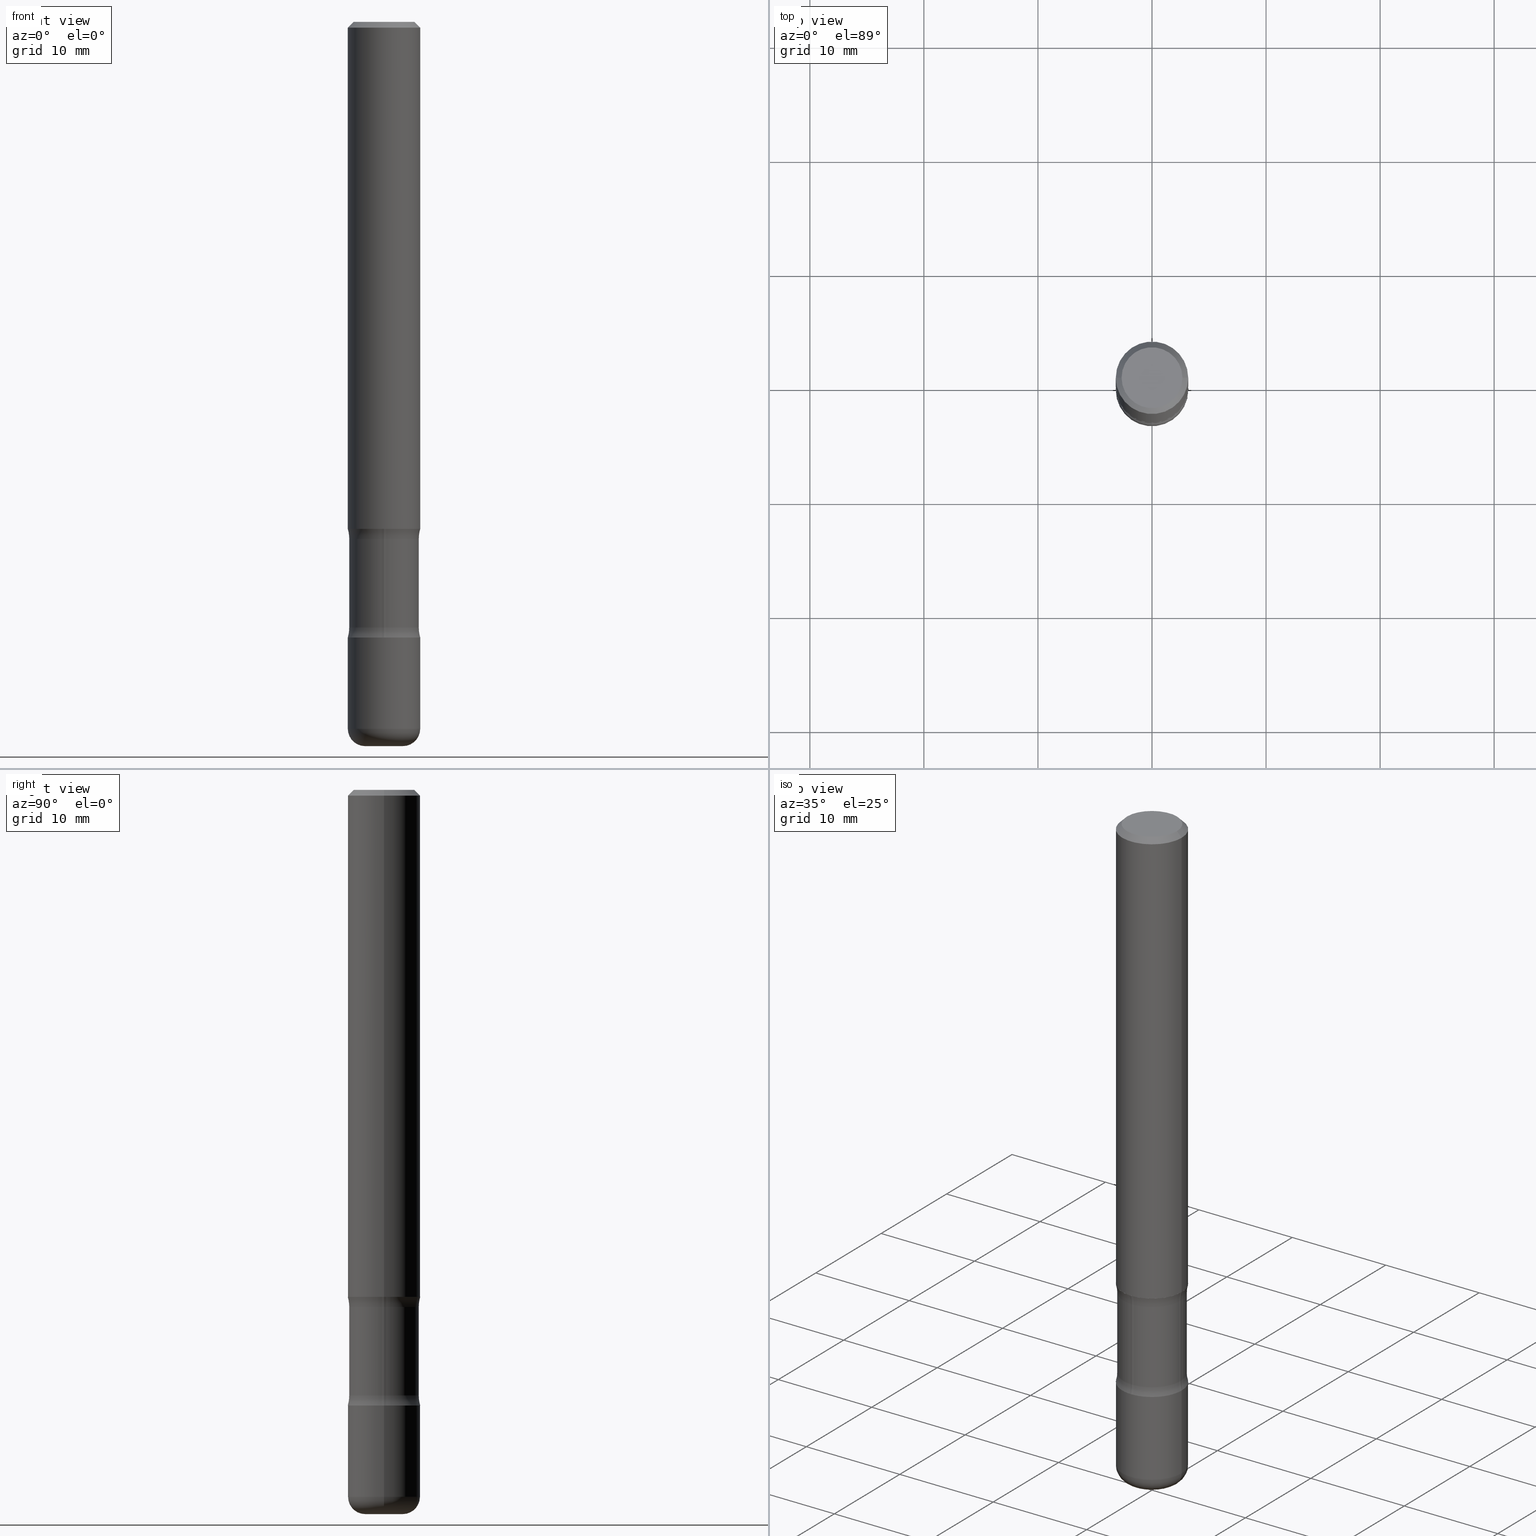
[diagram: canonical four-view strip — front | top / right | iso, engineering-drawing reading convention]
A machine part, canonical four-view strip (front | top / right | iso — engineering-drawing reading convention). The complete STEP part file that produces these views, byte-faithful:
ISO-10303-21;
HEADER;
FILE_DESCRIPTION (( 'STEP AP203' ),
    '1' );
FILE_NAME ('35788.STEP',
    '2023-03-11T07:10:27',
    ( '' ),
    ( '' ),
    'SwSTEP 2.0',
    'SolidWorks 2022',
    '' );
FILE_SCHEMA (( 'CONFIG_CONTROL_DESIGN' ));
ENDSEC;

DATA;
#1 = LENGTH_MEASURE_WITH_UNIT ( LENGTH_MEASURE( 0.02539999999999999897 ), #186 );
#2 = CONICAL_SURFACE ( 'NONE', #465, 0.1249999999999997780, 0.7853981633974477239 ) ;
#3 = DIRECTION ( 'NONE',  ( -2.445468806185136877E-29, 3.491481338843145188E-15, 1.000000000000000000 ) ) ;
#4 = AXIS2_PLACEMENT_3D ( 'NONE', #162, #111, #786 ) ;
#5 = ORIENTED_EDGE ( 'NONE', *, *, #499, .T. ) ;
#6 = EDGE_CURVE ( 'NONE', #706, #231, #749, .T. ) ;
#7 = DIRECTION ( 'NONE',  ( -0.7071067811865471286, 2.468850131082252722E-15, -0.7071067811865479058 ) ) ;
#8 = ORIENTED_EDGE ( 'NONE', *, *, #389, .F. ) ;
#9 = PERSON_AND_ORGANIZATION ( #29, #80 ) ;
#10 = DIRECTION ( 'NONE',  ( 1.000000000000000000, -6.982962677686262766E-15, 0.000000000000000000 ) ) ;
#11 = ORIENTED_EDGE ( 'NONE', *, *, #742, .F. ) ;
#12 = EDGE_CURVE ( 'NONE', #547, #70, #141, .T. ) ;
#13 = CARTESIAN_POINT ( 'NONE',  ( 5.111029804926934859E-29, -7.297195998182173641E-15, -2.089999999999999858 ) ) ;
#14 = VERTEX_POINT ( 'NONE', #411 ) ;
#15 = TOROIDAL_SURFACE ( 'NONE', #221, 0.2449999999999998568, 0.1250000000000000278 ) ;
#16 = VECTOR ( 'NONE', #281, 39.37007874015748143 ) ;
#17 = EDGE_CURVE ( 'NONE', #399, #403, #490, .T. ) ;
#18 = APPROVAL_STATUS ( 'not_yet_approved' ) ;
#19 = DIRECTION ( 'NONE',  ( 1.000000000000000000, -6.982962677686266711E-15, 4.883557194083112901E-29 ) ) ;
#20 = ORIENTED_EDGE ( 'NONE', *, *, #404, .F. ) ;
#21 = FACE_OUTER_BOUND ( 'NONE', #483, .T. ) ;
#22 = FACE_OUTER_BOUND ( 'NONE', #703, .T. ) ;
#23 = ORIENTED_EDGE ( 'NONE', *, *, #74, .T. ) ;
#24 = ADVANCED_FACE ( 'NONE', ( #519 ), #660, .F. ) ;
#25 = CARTESIAN_POINT ( 'NONE',  ( 5.196621213143415268E-29, -7.419397845041685201E-15, -2.125000000000000000 ) ) ;
#26 = DIRECTION ( 'NONE',  ( 0.7071067811865471286, -7.319954787623254468E-15, -0.7071067811865479058 ) ) ;
#27 = AXIS2_PLACEMENT_3D ( 'NONE', #116, #599, #605 ) ;
#28 = AXIS2_PLACEMENT_3D ( 'NONE', #580, #30, #770 ) ;
#29 = PERSON ( 'UNSPECIFIED', 'UNSPECIFIED', 'UNSPECIFIED', ('UNSPECIFIED'), ('UNSPECIFIED'), ('UNSPECIFIED') ) ;
#30 = DIRECTION ( 'NONE',  ( -2.445468806185136597E-29, 3.491481338843145583E-15, 1.000000000000000000 ) ) ;
#31 = DIRECTION ( 'NONE',  ( 2.451633719983710684E-29, -3.482652831398484905E-15, -1.000000000000000000 ) ) ;
#32 = DIRECTION ( 'NONE',  ( -2.445468806185136597E-29, 3.491481338843145583E-15, 1.000000000000000000 ) ) ;
#33 = DIRECTION ( 'NONE',  ( 2.438088387897960049E-29, -3.491481338843145188E-15, -1.000000000000000000 ) ) ;
#34 = EDGE_LOOP ( 'NONE', ( #294, #681 ) ) ;
#35 = LINE ( 'NONE', #801, #16 ) ;
#36 = DIRECTION ( 'NONE',  ( 1.000000000000000000, -6.982962677686266711E-15, 4.876176775795935793E-29 ) ) ;
#37 = PERSON_AND_ORGANIZATION ( #29, #80 ) ;
#38 = EDGE_CURVE ( 'NONE', #73, #342, #118, .T. ) ;
#39 = CIRCLE ( 'NONE', #380, 0.1249999999999999861 ) ;
#40 = VECTOR ( 'NONE', #767, 39.37007874015748143 ) ;
#41 = CARTESIAN_POINT ( 'NONE',  ( 6.111489178996587108E-29, -8.719007768687004191E-15, -2.498166659601683826 ) ) ;
#42 = DIRECTION ( 'NONE',  ( -2.445468806185136597E-29, 3.491481338843145583E-15, 1.000000000000000000 ) ) ;
#43 = MANIFOLD_SOLID_BREP ( 'Body-Move/Copy2[2]', #672 ) ;
#44 = EDGE_LOOP ( 'NONE', ( #608, #603, #480, #314 ) ) ;
#45 = DATE_TIME_ROLE ( 'classification_date' ) ;
#46 = MANIFOLD_SOLID_BREP ( 'Body-Move/Copy2[1]', #567 ) ;
#47 = DIRECTION ( 'NONE',  ( 6.982962677686265922E-15, 1.000000000000000000, -4.370956789862821150E-15 ) ) ;
#48 = CARTESIAN_POINT ( 'NONE',  ( 6.111489178996587108E-29, -8.719007768687004191E-15, -2.498166659601683826 ) ) ;
#49 = ORIENTED_EDGE ( 'NONE', *, *, #440, .T. ) ;
#50 = DIRECTION ( 'NONE',  ( -2.451633719983710403E-29, 3.482652831398484905E-15, 1.000000000000000000 ) ) ;
#51 = APPROVAL ( #615, 'UNSPECIFIED' ) ;
#52 = DIRECTION ( 'NONE',  ( 1.000000000000000000, -6.982962677686261189E-15, 0.000000000000000000 ) ) ;
#53 = ORIENTED_EDGE ( 'NONE', *, *, #6, .F. ) ;
#54 = VECTOR ( 'NONE', #26, 39.37007874015748143 ) ;
#55 = DIRECTION ( 'NONE',  ( -6.982962677686265922E-15, -1.000000000000000000, 3.482652831398484905E-15 ) ) ;
#56 = AXIS2_PLACEMENT_3D ( 'NONE', #481, #50, #55 ) ;
#57 = TOROIDAL_SURFACE ( 'NONE', #700, 0.2449999999999998568, 0.1250000000000000000 ) ;
#58 = CARTESIAN_POINT ( 'NONE',  ( 0.2449999999999998568, -7.943120045868152049E-15, -1.785000000000000808 ) ) ;
#59 = EDGE_LOOP ( 'NONE', ( #386, #443, #536, #129 ) ) ;
#60 = CARTESIAN_POINT ( 'NONE',  ( 0.000000000000000000, 0.000000000000000000, 0.000000000000000000 ) ) ;
#61 = CARTESIAN_POINT ( 'NONE',  ( 4.277258568149523867E-29, -6.113403033267252573E-15, -1.750000000000000222 ) ) ;
#62 = EDGE_LOOP ( 'NONE', ( #87, #23, #345, #164 ) ) ;
#63 = ADVANCED_FACE ( 'NONE', ( #22 ), #2, .T. ) ;
#64 = VERTEX_POINT ( 'NONE', #574 ) ;
#65 = PERSON_AND_ORGANIZATION ( #29, #80 ) ;
#66 = CIRCLE ( 'NONE', #734, 0.1250000000000000000 ) ;
#67 = FACE_OUTER_BOUND ( 'NONE', #273, .T. ) ;
#68 = CIRCLE ( 'NONE', #689, 0.1249999999999999861 ) ;
#69 = CIRCLE ( 'NONE', #652, 0.1199999999999998429 ) ;
#70 = VERTEX_POINT ( 'NONE', #577 ) ;
#71 = PERSON_AND_ORGANIZATION ( #29, #80 ) ;
#72 = DIRECTION ( 'NONE',  ( 1.000000000000000000, -6.982962677686266711E-15, 4.883557194083112901E-29 ) ) ;
#73 = VERTEX_POINT ( 'NONE', #161 ) ;
#74 = EDGE_CURVE ( 'NONE', #139, #110, #522, .T. ) ;
#75 = CARTESIAN_POINT ( 'NONE',  ( 1.608875449502237401E-29, -9.934679534105473571E-15, -1.750000000000000222 ) ) ;
#76 = ADVANCED_FACE ( 'NONE', ( #457 ), #265, .T. ) ;
#77 = ORIENTED_EDGE ( 'NONE', *, *, #17, .T. ) ;
#78 = AXIS2_PLACEMENT_3D ( 'NONE', #210, #264, #205 ) ;
#79 = EDGE_LOOP ( 'NONE', ( #91, #472, #419, #358 ) ) ;
#80 = ORGANIZATION ( 'UNSPECIFIED', 'UNSPECIFIED', '' ) ;
#81 = CARTESIAN_POINT ( 'NONE',  ( 4.279570410823989044E-29, -6.110092342975505460E-15, -1.750000000000000222 ) ) ;
#82 = DIRECTION ( 'NONE',  ( -1.000000000000000000, 6.982962677686265922E-15, -4.876176775795935793E-29 ) ) ;
#83 = ADVANCED_FACE ( 'NONE', ( #762 ), #454, .T. ) ;
#84 = DATE_AND_TIME ( #575, #341 ) ;
#85 = CARTESIAN_POINT ( 'NONE',  ( -0.1249999999999999029, 8.881784197001245421E-16, -6.148668862818627323E-30 ) ) ;
#86 = DIRECTION ( 'NONE',  ( -2.445468806185136597E-29, 3.491481338843145583E-15, 1.000000000000000000 ) ) ;
#87 = ORIENTED_EDGE ( 'NONE', *, *, #260, .F. ) ;
#88 = CARTESIAN_POINT ( 'NONE',  ( 4.363065748348955413E-29, -6.235295882366202606E-15, -1.785000000000000808 ) ) ;
#89 = CARTESIAN_POINT ( 'NONE',  ( -0.1049999999999997741, 7.681258945454874055E-16, -1.707404996040689597E-17 ) ) ;
#90 = TOROIDAL_SURFACE ( 'NONE', #338, 0.2449999999999998568, 0.1250000000000000278 ) ;
#91 = ORIENTED_EDGE ( 'NONE', *, *, #269, .T. ) ;
#92 = CIRCLE ( 'NONE', #393, 0.1250000000000000000 ) ;
#93 = CIRCLE ( 'NONE', #737, 0.1250000000000000278 ) ;
#94 = DIRECTION ( 'NONE',  ( -2.445468806185136597E-29, 3.491481338843145583E-15, 1.000000000000000000 ) ) ;
#95 = CARTESIAN_POINT ( 'NONE',  ( 8.439607951891260774E-29, -2.775256255812431222E-15, -2.125000000000000000 ) ) ;
#96 = EDGE_LOOP ( 'NONE', ( #236, #486, #475, #671 ) ) ;
#97 = DIRECTION ( 'NONE',  ( 2.451633719983710684E-29, -3.482652831398484905E-15, -1.000000000000000000 ) ) ;
#98 = DIRECTION ( 'NONE',  ( -2.445468806185136597E-29, 3.491481338843145583E-15, 1.000000000000000000 ) ) ;
#99 = EDGE_CURVE ( 'NONE', #342, #73, #106, .T. ) ;
#100 = EDGE_LOOP ( 'NONE', ( #150, #185, #49, #427 ) ) ;
#101 = PRODUCT ( '35788', '35788', '', ( #493 ) ) ;
#102 = EDGE_CURVE ( 'NONE', #110, #64, #525, .T. ) ;
#103 = DIRECTION ( 'NONE',  ( -2.445468806185136597E-29, 3.491481338843145583E-15, 1.000000000000000000 ) ) ;
#104 = LINE ( 'NONE', #163, #352 ) ;
#105 = ORIENTED_EDGE ( 'NONE', *, *, #167, .F. ) ;
#106 = CIRCLE ( 'NONE', #479, 0.1199999999999998013 ) ;
#107 = CIRCLE ( 'NONE', #182, 0.1250000000000000000 ) ;
#108 = CARTESIAN_POINT ( 'NONE',  ( 8.728703347108260359E-16, 0.1249999999999938799, -1.750000000000000666 ) ) ;
#109 = DIRECTION ( 'NONE',  ( 1.000000000000000000, -6.982962677686263555E-15, 0.000000000000000000 ) ) ;
#110 = VERTEX_POINT ( 'NONE', #396 ) ;
#111 = DIRECTION ( 'NONE',  ( -2.445468806185136597E-29, 3.491481338843145583E-15, 1.000000000000000000 ) ) ;
#112 = DIRECTION ( 'NONE',  ( -2.438088387897960049E-29, 3.491481338843145188E-15, 1.000000000000000000 ) ) ;
#113 = ORIENTED_EDGE ( 'NONE', *, *, #756, .T. ) ;
#114 = EDGE_CURVE ( 'NONE', #287, #547, #763, .T. ) ;
#115 = CARTESIAN_POINT ( 'NONE',  ( 0.06500000000000000222, -8.973107040826881753E-15, -2.440000000000000391 ) ) ;
#116 = CARTESIAN_POINT ( 'NONE',  ( 4.175405657340879278E-46, -5.961372681521788801E-32, -1.707404996040164512E-17 ) ) ;
#117 = EDGE_LOOP ( 'NONE', ( #11, #719, #750 ) ) ;
#118 = CIRCLE ( 'NONE', #308, 0.1199999999999998013 ) ;
#119 = APPROVAL_STATUS ( 'not_yet_approved' ) ;
#120 = AXIS2_PLACEMENT_3D ( 'NONE', #510, #394, #212 ) ;
#121 = CARTESIAN_POINT ( 'NONE',  ( 6.113672015462843734E-29, -8.728703347107868098E-15, -2.500000000000001332 ) ) ;
#122 = ADVANCED_FACE ( 'NONE', ( #639 ), #204, .T. ) ;
#123 = VERTEX_POINT ( 'NONE', #642 ) ;
#124 = DIRECTION ( 'NONE',  ( -2.445468806185136597E-29, 3.491481338843145583E-15, 1.000000000000000000 ) ) ;
#125 = EDGE_CURVE ( 'NONE', #793, #730, #66, .T. ) ;
#126 = VERTEX_POINT ( 'NONE', #89 ) ;
#127 =( NAMED_UNIT ( * ) SI_UNIT ( $, .STERADIAN. ) SOLID_ANGLE_UNIT ( ) );
#128 = CARTESIAN_POINT ( 'NONE',  ( 5.966943887091733341E-29, -8.519214466777275048E-15, -2.440000000000000391 ) ) ;
#129 = ORIENTED_EDGE ( 'NONE', *, *, #214, .F. ) ;
#130 = EDGE_CURVE ( 'NONE', #722, #73, #153, .T. ) ;
#131 = APPROVAL_DATE_TIME ( #744, #300 ) ;
#132 = VECTOR ( 'NONE', #226, 39.37007874015748143 ) ;
#133 = DIRECTION ( 'NONE',  ( 1.000000000000000000, -6.860497997771530774E-15, 4.840906997657976435E-29 ) ) ;
#134 = TOROIDAL_SURFACE ( 'NONE', #662, 0.06500000000000000222, 0.05999999999999968553 ) ;
#135 = EDGE_LOOP ( 'NONE', ( #423, #154, #557, #728 ) ) ;
#136 = PRODUCT_RELATED_PRODUCT_CATEGORY ( 'detail', '', ( #101 ) ) ;
#137 = DIRECTION ( 'NONE',  ( 1.000000000000000000, -6.982962677686261189E-15, 0.000000000000000000 ) ) ;
#138 = DIRECTION ( 'NONE',  ( -1.000000000000000000, 6.982962677686266711E-15, 0.000000000000000000 ) ) ;
#139 = VERTEX_POINT ( 'NONE', #646 ) ;
#140 = PLANE ( 'NONE',  #207 ) ;
#141 = LINE ( 'NONE', #390, #206 ) ;
#142 = APPLICATION_CONTEXT ( 'configuration controlled 3d designs of mechanical parts and assemblies' ) ;
#143 = DIRECTION ( 'NONE',  ( -2.438088387897960049E-29, 3.491481338843145188E-15, 1.000000000000000000 ) ) ;
#144 = CIRCLE ( 'NONE', #591, 0.06500000000000001610 ) ;
#145 = AXIS2_PLACEMENT_3D ( 'NONE', #428, #598, #421 ) ;
#146 = DIRECTION ( 'NONE',  ( 1.000000000000000000, -6.982962677686263555E-15, 0.000000000000000000 ) ) ;
#147 = LOCAL_TIME ( 2, 10, 27.00000000000000000, #790 ) ;
#148 = LINE ( 'NONE', #85, #40 ) ;
#149 = DIRECTION ( 'NONE',  ( 1.000000000000000000, -6.982962677686263555E-15, 0.000000000000000000 ) ) ;
#150 = ORIENTED_EDGE ( 'NONE', *, *, #301, .F. ) ;
#151 = ADVANCED_FACE ( 'NONE', ( #340 ), #582, .F. ) ;
#152 = DIRECTION ( 'NONE',  ( 6.982962677686265922E-15, 1.000000000000000000, -3.482652831398484905E-15 ) ) ;
#153 = LINE ( 'NONE', #156, #256 ) ;
#154 = ORIENTED_EDGE ( 'NONE', *, *, #114, .F. ) ;
#155 = CYLINDRICAL_SURFACE ( 'NONE', #369, 0.1199999999999998151 ) ;
#156 = CARTESIAN_POINT ( 'NONE',  ( 0.1199999999999998151, -6.948047864297855572E-15, -1.750000000000000000 ) ) ;
#157 = VERTEX_POINT ( 'NONE', #467 ) ;
#158 = AXIS2_PLACEMENT_3D ( 'NONE', #550, #378, #257 ) ;
#159 = LOCAL_TIME ( 2, 10, 27.00000000000000000, #559 ) ;
#160 = CARTESIAN_POINT ( 'NONE',  ( 4.365161819040470574E-29, -6.232294189835017809E-15, -1.785000000000000808 ) ) ;
#161 = CARTESIAN_POINT ( 'NONE',  ( 0.1199999999999998013, -7.070249711157367921E-15, -1.785000000000000808 ) ) ;
#162 = CARTESIAN_POINT ( 'NONE',  ( 5.966943887091733341E-29, -8.519214466777275048E-15, -2.440000000000000391 ) ) ;
#163 = CARTESIAN_POINT ( 'NONE',  ( -0.1199999999999998151, -5.257441060063385268E-15, -1.750000000000000000 ) ) ;
#164 = ORIENTED_EDGE ( 'NONE', *, *, #388, .F. ) ;
#165 = FACE_OUTER_BOUND ( 'NONE', #62, .T. ) ;
#166 = DIRECTION ( 'NONE',  ( 1.000000000000000000, -6.982962677686269866E-15, 4.883557194083114022E-29 ) ) ;
#167 = EDGE_CURVE ( 'NONE', #14, #502, #268, .T. ) ;
#168 = ORIENTED_EDGE ( 'NONE', *, *, #752, .F. ) ;
#169 = AXIS2_PLACEMENT_3D ( 'NONE', #259, #201, #695 ) ;
#170 = AXIS2_PLACEMENT_3D ( 'NONE', #313, #133, #805 ) ;
#171 = CARTESIAN_POINT ( 'NONE',  ( 4.279570410823988484E-29, -6.110092342975504671E-15, -1.750000000000000000 ) ) ;
#172 = FACE_OUTER_BOUND ( 'NONE', #117, .T. ) ;
#173 = ORIENTED_EDGE ( 'NONE', *, *, #410, .F. ) ;
#174 = DIRECTION ( 'NONE',  ( -1.000000000000000000, 6.982962677686266711E-15, 0.000000000000000000 ) ) ;
#175 = CARTESIAN_POINT ( 'NONE',  ( 1.023874880948153879E-27, -1.461821975033644859E-13, -41.86824539975916082 ) ) ;
#176 = ORIENTED_EDGE ( 'NONE', *, *, #597, .F. ) ;
#177 = CARTESIAN_POINT ( 'NONE',  ( 4.277258568149523867E-29, -6.113403033267252573E-15, -1.750000000000000222 ) ) ;
#178 = LINE ( 'NONE', #372, #132 ) ;
#179 = ORIENTED_EDGE ( 'NONE', *, *, #260, .T. ) ;
#180 = APPLICATION_CONTEXT ( 'configuration controlled 3d designs of mechanical parts and assemblies' ) ;
#181 = AXIS2_PLACEMENT_3D ( 'NONE', #768, #279, #771 ) ;
#182 = AXIS2_PLACEMENT_3D ( 'NONE', #177, #97, #47 ) ;
#183 = APPROVAL_PERSON_ORGANIZATION ( #37, #640, #784 ) ;
#184 = CARTESIAN_POINT ( 'NONE',  ( -0.06500000000000001610, -7.948943307970475008E-15, -2.499999999999999556 ) ) ;
#185 = ORIENTED_EDGE ( 'NONE', *, *, #197, .T. ) ;
#186 =( LENGTH_UNIT ( ) NAMED_UNIT ( * ) SI_UNIT ( $, .METRE. ) );
#187 = CARTESIAN_POINT ( 'NONE',  ( 5.966943887091733341E-29, -8.519214466777275048E-15, -2.440000000000000391 ) ) ;
#188 = ORIENTED_EDGE ( 'NONE', *, *, #319, .T. ) ;
#189 = CARTESIAN_POINT ( 'NONE',  ( 8.728703347108350092E-16, 0.1249999999999925199, -2.125000000000000444 ) ) ;
#190 = DIRECTION ( 'NONE',  ( 1.000000000000000000, -6.860497997771530774E-15, 4.840906997657976435E-29 ) ) ;
#191 = VERTEX_POINT ( 'NONE', #663 ) ;
#192 = ADVANCED_FACE ( 'NONE', ( #172 ), #578, .F. ) ;
#193 = CYLINDRICAL_SURFACE ( 'NONE', #370, 0.1250000000000000000 ) ;
#194 = AXIS2_PLACEMENT_3D ( 'NONE', #187, #316, #10 ) ;
#195 = DIRECTION ( 'NONE',  ( -2.445468806185136597E-29, 3.491481338843145583E-15, 1.000000000000000000 ) ) ;
#196 = AXIS2_PLACEMENT_3D ( 'NONE', #461, #641, #569 ) ;
#197 = EDGE_CURVE ( 'NONE', #441, #123, #232, .T. ) ;
#198 = APPROVAL_PERSON_ORGANIZATION ( #65, #300, #311 ) ;
#199 = ORIENTED_EDGE ( 'NONE', *, *, #697, .F. ) ;
#200 = CARTESIAN_POINT ( 'NONE',  ( -8.575622497213982552E-16, -0.1250000000000061062, -1.749999999999999556 ) ) ;
#201 = DIRECTION ( 'NONE',  ( -2.445468806185136597E-29, 3.491481338843145583E-15, 1.000000000000000000 ) ) ;
#202 = EDGE_CURVE ( 'NONE', #755, #769, #778, .T. ) ;
#203 = FACE_OUTER_BOUND ( 'NONE', #617, .T. ) ;
#204 = CYLINDRICAL_SURFACE ( 'NONE', #283, 0.1250000000000000000 ) ;
#205 = DIRECTION ( 'NONE',  ( 1.000000000000000000, -6.982962677686269077E-15, 0.000000000000000000 ) ) ;
#206 = VECTOR ( 'NONE', #508, 39.37007874015748143 ) ;
#207 = AXIS2_PLACEMENT_3D ( 'NONE', #75, #682, #321 ) ;
#208 = DIRECTION ( 'NONE',  ( 2.445468806185136597E-29, -3.491481338843145583E-15, -1.000000000000000000 ) ) ;
#209 = CIRCLE ( 'NONE', #679, 0.1250000000000000000 ) ;
#210 = CARTESIAN_POINT ( 'NONE',  ( 5.111029804926934859E-29, -7.297195998182173641E-15, -2.089999999999999858 ) ) ;
#211 = DIRECTION ( 'NONE',  ( 1.000000000000000000, -6.982962677686262766E-15, 0.000000000000000000 ) ) ;
#212 = DIRECTION ( 'NONE',  ( 1.000000000000000000, -6.982962677686263555E-15, 0.000000000000000000 ) ) ;
#213 = DIRECTION ( 'NONE',  ( 6.982962677686265922E-15, 1.000000000000000000, -4.553079989440446192E-15 ) ) ;
#214 = EDGE_CURVE ( 'NONE', #399, #73, #417, .T. ) ;
#215 = DIRECTION ( 'NONE',  ( 1.000000000000000000, -6.982962677686263555E-15, 0.000000000000000000 ) ) ;
#216 = EDGE_CURVE ( 'NONE', #14, #342, #104, .T. ) ;
#217 = DIRECTION ( 'NONE',  ( -1.000000000000000000, 6.982962677686265922E-15, -4.876176775795935793E-29 ) ) ;
#218 = AXIS2_PLACEMENT_3D ( 'NONE', #709, #347, #82 ) ;
#219 = TOROIDAL_SURFACE ( 'NONE', #504, 0.2449999999999998568, 0.1250000000000000000 ) ;
#220 = DATE_AND_TIME ( #329, #147 ) ;
#221 = AXIS2_PLACEMENT_3D ( 'NONE', #619, #556, #250 ) ;
#222 = CARTESIAN_POINT ( 'NONE',  ( 8.379555213224018810E-16, 0.1199999999999925571, -2.090000000000000302 ) ) ;
#223 = CARTESIAN_POINT ( 'NONE',  ( 4.365161819040470574E-29, -6.232294189835017809E-15, -1.785000000000000808 ) ) ;
#224 = EDGE_CURVE ( 'NONE', #730, #70, #431, .T. ) ;
#225 = DIRECTION ( 'NONE',  ( 6.982962677686265922E-15, 1.000000000000000000, -3.482652831398484905E-15 ) ) ;
#226 = DIRECTION ( 'NONE',  ( -2.445468806185136877E-29, 3.491481338843145188E-15, 1.000000000000000000 ) ) ;
#227 = ORIENTED_EDGE ( 'NONE', *, *, #125, .T. ) ;
#228 = EDGE_CURVE ( 'NONE', #502, #448, #39, .T. ) ;
#229 = DIRECTION ( 'NONE',  ( 6.982962677686265922E-15, 1.000000000000000000, -4.553079989440445403E-15 ) ) ;
#230 = CYLINDRICAL_SURFACE ( 'NONE', #687, 0.1199999999999998151 ) ;
#231 = VERTEX_POINT ( 'NONE', #675 ) ;
#232 = CIRCLE ( 'NONE', #392, 0.1250000000000000000 ) ;
#233 = CIRCLE ( 'NONE', #445, 0.1249999999999999861 ) ;
#234 = DIRECTION ( 'NONE',  ( 1.000000000000000000, -6.982962677686270655E-15, 0.000000000000000000 ) ) ;
#235 = CARTESIAN_POINT ( 'NONE',  ( 5.966943887091733341E-29, -8.519214466777275048E-15, -2.440000000000000391 ) ) ;
#236 = ORIENTED_EDGE ( 'NONE', *, *, #614, .T. ) ;
#237 = ADVANCED_FACE ( 'NONE', ( #799, #482 ), #422, .F. ) ;
#238 = DIRECTION ( 'NONE',  ( -2.445468806185136597E-29, 3.491481338843145583E-15, 1.000000000000000000 ) ) ;
#239 = DIRECTION ( 'NONE',  ( 1.000000000000000000, -6.982962677686272233E-15, 0.000000000000000000 ) ) ;
#240 = ORIENTED_EDGE ( 'NONE', *, *, #102, .F. ) ;
#241 = EDGE_CURVE ( 'NONE', #512, #157, #711, .T. ) ;
#242 = PERSON_AND_ORGANIZATION ( #29, #80 ) ;
#243 = FACE_OUTER_BOUND ( 'NONE', #363, .T. ) ;
#244 = ORIENTED_EDGE ( 'NONE', *, *, #477, .F. ) ;
#245 = AXIS2_PLACEMENT_3D ( 'NONE', #426, #366, #362 ) ;
#246 = TOROIDAL_SURFACE ( 'NONE', #353, 0.2449999999999998568, 0.1250000000000000278 ) ;
#247 = APPLICATION_PROTOCOL_DEFINITION ( 'international standard', 'config_control_design', 1994, #142 ) ;
#248 = DIRECTION ( 'NONE',  ( -1.000000000000000000, 6.982962677686265922E-15, -4.883557194083112340E-29 ) ) ;
#249 = ORIENTED_EDGE ( 'NONE', *, *, #772, .F. ) ;
#250 = DIRECTION ( 'NONE',  ( 1.000000000000000000, -6.982962677686269866E-15, 4.883557194083114022E-29 ) ) ;
#251 = VERTEX_POINT ( 'NONE', #595 ) ;
#252 = PERSON_AND_ORGANIZATION_ROLE ( 'design_supplier' ) ;
#253 = DIRECTION ( 'NONE',  ( -6.982962677686265922E-15, -1.000000000000000000, 0.000000000000000000 ) ) ;
#254 = ADVANCED_FACE ( 'NONE', ( #670 ), #718, .F. ) ;
#255 = EDGE_LOOP ( 'NONE', ( #105, #384, #491, #463 ) ) ;
#256 = VECTOR ( 'NONE', #401, 39.37007874015748143 ) ;
#257 = DIRECTION ( 'NONE',  ( 6.982962677686265922E-15, 1.000000000000000000, -4.370956789862821938E-15 ) ) ;
#258 = AXIS2_PLACEMENT_3D ( 'NONE', #507, #409, #19 ) ;
#259 = CARTESIAN_POINT ( 'NONE',  ( 5.196621213143415268E-29, -7.419397845041685201E-15, -2.125000000000000000 ) ) ;
#260 = EDGE_CURVE ( 'NONE', #139, #126, #444, .T. ) ;
#261 = APPROVAL_DATE_TIME ( #220, #640 ) ;
#262 = FACE_OUTER_BOUND ( 'NONE', #743, .T. ) ;
#263 = ORIENTED_EDGE ( 'NONE', *, *, #241, .F. ) ;
#264 = DIRECTION ( 'NONE',  ( -2.445468806185136597E-29, 3.491481338843145583E-15, 1.000000000000000000 ) ) ;
#265 = CYLINDRICAL_SURFACE ( 'NONE', #635, 0.1249999999999999029 ) ;
#266 = ORIENTED_EDGE ( 'NONE', *, *, #12, .T. ) ;
#267 = PLANE ( 'NONE',  #622 ) ;
#268 = CIRCLE ( 'NONE', #648, 0.1250000000000000278 ) ;
#269 = EDGE_CURVE ( 'NONE', #191, #348, #144, .T. ) ;
#270 = AXIS2_PLACEMENT_3D ( 'NONE', #442, #560, #447 ) ;
#271 = CARTESIAN_POINT ( 'NONE',  ( 1.710825856033185318E-15, 0.2449999999999925293, -2.090000000000000746 ) ) ;
#272 = CIRCLE ( 'NONE', #554, 0.05999999999999969247 ) ;
#273 = EDGE_LOOP ( 'NONE', ( #783, #789, #188, #693 ) ) ;
#274 = DIRECTION ( 'NONE',  ( 1.000000000000000000, -6.982962677686266711E-15, 4.876176775795935793E-29 ) ) ;
#275 = CARTESIAN_POINT ( 'NONE',  ( 0.000000000000000000, 0.000000000000000000, 0.000000000000000000 ) ) ;
#276 = CC_DESIGN_DATE_AND_TIME_ASSIGNMENT ( #84, #45, ( #594 ) ) ;
#277 = ORIENTED_EDGE ( 'NONE', *, *, #571, .F. ) ;
#278 = CARTESIAN_POINT ( 'NONE',  ( -0.1249999999999999584, -6.531219425341560758E-15, -2.125000000000000000 ) ) ;
#279 = DIRECTION ( 'NONE',  ( 2.451633719983710684E-29, -3.482652831398484905E-15, -1.000000000000000000 ) ) ;
#280 = ORIENTED_EDGE ( 'NONE', *, *, #74, .F. ) ;
#281 = DIRECTION ( 'NONE',  ( 0.9993908270190954291, -6.978169709227571465E-15, -0.03489949670250995506 ) ) ;
#282 = CARTESIAN_POINT ( 'NONE',  ( 4.890937612370284544E-31, -6.982962677686307633E-17, -0.02000000000000004552 ) ) ;
#283 = AXIS2_PLACEMENT_3D ( 'NONE', #451, #705, #462 ) ;
#284 = AXIS2_PLACEMENT_3D ( 'NONE', #505, #754, #138 ) ;
#285 = ORIENTED_EDGE ( 'NONE', *, *, #644, .F. ) ;
#286 = CARTESIAN_POINT ( 'NONE',  ( 6.113672015462840371E-29, -8.728703347107863365E-15, -2.499999999999999556 ) ) ;
#287 = VERTEX_POINT ( 'NONE', #485 ) ;
#288 = CARTESIAN_POINT ( 'NONE',  ( -2.205508295223544560E-17, -8.722302273319395875E-15, -2.498166659601683826 ) ) ;
#289 = CARTESIAN_POINT ( 'NONE',  ( 1.587248126624203287E-27, 2.098191361460335396E-13, -2.500000000000000000 ) ) ;
#290 = ORIENTED_EDGE ( 'NONE', *, *, #224, .F. ) ;
#291 = CARTESIAN_POINT ( 'NONE',  ( 5.111029804926934859E-29, -7.297195998182173641E-15, -2.089999999999999858 ) ) ;
#292 = DIRECTION ( 'NONE',  ( -2.445468806185136877E-29, 3.491481338843145188E-15, 1.000000000000000000 ) ) ;
#293 = ADVANCED_FACE ( 'NONE', ( #732 ), #230, .T. ) ;
#294 = ORIENTED_EDGE ( 'NONE', *, *, #269, .F. ) ;
#295 = AXIS2_PLACEMENT_3D ( 'NONE', #289, #112, #666 ) ;
#296 = CIRCLE ( 'NONE', #407, 0.1249999999999997780 ) ;
#297 = CC_DESIGN_APPROVAL ( #640, ( #594 ) ) ;
#298 = CARTESIAN_POINT ( 'NONE',  ( 4.890937612370284544E-31, -6.982962677686307633E-17, -0.02000000000000004552 ) ) ;
#299 = DIRECTION ( 'NONE',  ( 6.982962677686265922E-15, 1.000000000000000000, -4.553079989440444614E-15 ) ) ;
#300 = APPROVAL ( #119, 'UNSPECIFIED' ) ;
#301 = EDGE_CURVE ( 'NONE', #441, #231, #178, .T. ) ;
#302 = EDGE_LOOP ( 'NONE', ( #630, #643, #53, #498 ) ) ;
#303 = DIRECTION ( 'NONE',  ( -2.445468806185136597E-29, 3.491481338843145583E-15, 1.000000000000000000 ) ) ;
#304 = ORIENTED_EDGE ( 'NONE', *, *, #634, .F. ) ;
#305 = COORDINATED_UNIVERSAL_TIME_OFFSET ( 5, 0, .BEHIND. ) ;
#306 = CARTESIAN_POINT ( 'NONE',  ( 0.1250000000000000000, -8.728703347107833388E-16, 6.095220969744919741E-30 ) ) ;
#307 = VERTEX_POINT ( 'NONE', #474 ) ;
#308 = AXIS2_PLACEMENT_3D ( 'NONE', #408, #589, #146 ) ;
#309 = CONICAL_SURFACE ( 'NONE', #284, 1127.411546571190001, 1.535889741755001037 ) ;
#310 = ADVANCED_FACE ( 'NONE', ( #610 ), #90, .F. ) ;
#311 = APPROVAL_ROLE ( '' ) ;
#312 = AXIS2_PLACEMENT_3D ( 'NONE', #41, #425, #229 ) ;
#313 = CARTESIAN_POINT ( 'NONE',  ( -1.680822009453972766E-15, -0.2450000000000071565, -2.089999999999998970 ) ) ;
#314 = ORIENTED_EDGE ( 'NONE', *, *, #99, .F. ) ;
#315 = PRODUCT_DEFINITION ( 'UNKNOWN', '', #726, #796 ) ;
#316 = DIRECTION ( 'NONE',  ( -2.445468806185136597E-29, 3.491481338843145583E-15, 1.000000000000000000 ) ) ;
#317 = DIMENSIONAL_EXPONENTS ( 1.000000000000000000, 0.000000000000000000, 0.000000000000000000, 0.000000000000000000, 0.000000000000000000, 0.000000000000000000, 0.000000000000000000 ) ;
#318 = ORIENTED_EDGE ( 'NONE', *, *, #487, .T. ) ;
#319 = EDGE_CURVE ( 'NONE', #322, #733, #606, .T. ) ;
#320 = DIRECTION ( 'NONE',  ( 1.000000000000000000, 0.000000000000000000, 0.000000000000000000 ) ) ;
#321 = DIRECTION ( 'NONE',  ( 6.982962677686265922E-15, 1.000000000000000000, -3.482652831398484905E-15 ) ) ;
#322 = VERTEX_POINT ( 'NONE', #200 ) ;
#323 = VECTOR ( 'NONE', #453, 39.37007874015748143 ) ;
#324 = DIRECTION ( 'NONE',  ( 1.000000000000000000, -6.982962677686265922E-15, 4.876176775795935793E-29 ) ) ;
#325 = CIRCLE ( 'NONE', #466, 0.06500000000000001610 ) ;
#326 =( GEOMETRIC_REPRESENTATION_CONTEXT ( 3 ) GLOBAL_UNCERTAINTY_ASSIGNED_CONTEXT ( ( #725 ) ) GLOBAL_UNIT_ASSIGNED_CONTEXT ( ( #804, #609, #127 ) ) REPRESENTATION_CONTEXT ( 'NONE', 'WORKASPACE' ) );
#327 = EDGE_LOOP ( 'NONE', ( #664, #683 ) ) ;
#328 = CC_DESIGN_PERSON_AND_ORGANIZATION_ASSIGNMENT ( #9, #252, ( #726 ) ) ;
#329 = CALENDAR_DATE ( 2023, 11, 3 ) ;
#330 = DIRECTION ( 'NONE',  ( -2.445468806185136597E-29, 3.491481338843145583E-15, 1.000000000000000000 ) ) ;
#331 = CARTESIAN_POINT ( 'NONE',  ( 4.890937612370284544E-31, -6.982962677686307633E-17, -0.02000000000000004552 ) ) ;
#332 = ORIENTED_EDGE ( 'NONE', *, *, #581, .F. ) ;
#333 = CARTESIAN_POINT ( 'NONE',  ( 4.279570410823988484E-29, -6.110092342975504671E-15, -1.750000000000000000 ) ) ;
#334 = DIRECTION ( 'NONE',  ( -6.982962677686265922E-15, -1.000000000000000000, 0.000000000000000000 ) ) ;
#335 = ORIENTED_EDGE ( 'NONE', *, *, #228, .F. ) ;
#336 = EDGE_CURVE ( 'NONE', #123, #441, #539, .T. ) ;
#337 = DIRECTION ( 'NONE',  ( 6.982962677686265922E-15, 1.000000000000000000, -4.553079989440446192E-15 ) ) ;
#338 = AXIS2_PLACEMENT_3D ( 'NONE', #223, #535, #166 ) ;
#339 = VECTOR ( 'NONE', #3, 39.37007874015748143 ) ;
#340 = FACE_OUTER_BOUND ( 'NONE', #520, .T. ) ;
#341 = LOCAL_TIME ( 2, 10, 27.00000000000000000, #760 ) ;
#342 = VERTEX_POINT ( 'NONE', #495 ) ;
#343 = CARTESIAN_POINT ( 'NONE',  ( 0.000000000000000000, 0.000000000000000000, 0.000000000000000000 ) ) ;
#344 = DIRECTION ( 'NONE',  ( -1.000000000000000000, 6.982962677686266711E-15, 0.000000000000000000 ) ) ;
#345 = ORIENTED_EDGE ( 'NONE', *, *, #102, .T. ) ;
#346 = PLANE ( 'NONE',  #56 ) ;
#347 = DIRECTION ( 'NONE',  ( 2.438088387897960049E-29, -3.491481338843145188E-15, -1.000000000000000000 ) ) ;
#348 = VERTEX_POINT ( 'NONE', #184 ) ;
#349 = PERSON_AND_ORGANIZATION ( #29, #80 ) ;
#350 = FACE_OUTER_BOUND ( 'NONE', #562, .T. ) ;
#351 = DIRECTION ( 'NONE',  ( 2.451633719983710684E-29, -3.482652831398484905E-15, -1.000000000000000000 ) ) ;
#352 = VECTOR ( 'NONE', #292, 39.37007874015748143 ) ;
#353 = AXIS2_PLACEMENT_3D ( 'NONE', #160, #518, #152 ) ;
#354 = ORIENTED_EDGE ( 'NONE', *, *, #597, .T. ) ;
#355 = LOCAL_TIME ( 2, 10, 27.00000000000000000, #446 ) ;
#356 = DIRECTION ( 'NONE',  ( 7.105427357601001859E-15, 1.000000000000000000, -3.491481338843145583E-15 ) ) ;
#357 = CARTESIAN_POINT ( 'NONE',  ( 5.110814032943984844E-29, -7.297504995942737535E-15, -2.089999999999999858 ) ) ;
#358 = ORIENTED_EDGE ( 'NONE', *, *, #756, .F. ) ;
#359 = ADVANCED_FACE ( 'NONE', ( #624 ), #309, .F. ) ;
#360 = DIRECTION ( 'NONE',  ( 2.451633719983710684E-29, -3.482652831398484905E-15, -1.000000000000000000 ) ) ;
#361 = ADVANCED_BREP_SHAPE_REPRESENTATION ( '35788', ( #46, #43, #587, #566, #542 ), #326 ) ;
#362 = DIRECTION ( 'NONE',  ( 1.000000000000000000, -6.982962677686265922E-15, 4.876176775795935793E-29 ) ) ;
#363 = EDGE_LOOP ( 'NONE', ( #354, #179 ) ) ;
#364 = CARTESIAN_POINT ( 'NONE',  ( -0.06500000000000000222, -8.057361688533210306E-15, -2.440000000000000391 ) ) ;
#365 = ADVANCED_FACE ( 'NONE', ( #501 ), #219, .F. ) ;
#366 = DIRECTION ( 'NONE',  ( -2.438088387897960049E-29, 3.491481338843145188E-15, 1.000000000000000000 ) ) ;
#367 = ORIENTED_EDGE ( 'NONE', *, *, #214, .T. ) ;
#368 = AXIS2_PLACEMENT_3D ( 'NONE', #658, #42, #729 ) ;
#369 = AXIS2_PLACEMENT_3D ( 'NONE', #171, #238, #731 ) ;
#370 = AXIS2_PLACEMENT_3D ( 'NONE', #60, #753, #371 ) ;
#371 = DIRECTION ( 'NONE',  ( 1.000000000000000000, -6.982962677686266711E-15, 4.876176775795935793E-29 ) ) ;
#372 = CARTESIAN_POINT ( 'NONE',  ( -0.1250000000000000000, 8.881784197001252323E-16, -6.148668862818632227E-30 ) ) ;
#373 = ORIENTED_EDGE ( 'NONE', *, *, #509, .F. ) ;
#374 = PERSON_AND_ORGANIZATION_ROLE ( 'design_owner' ) ;
#375 = FACE_OUTER_BOUND ( 'NONE', #79, .T. ) ;
#376 = ORIENTED_EDGE ( 'NONE', *, *, #772, .T. ) ;
#377 = DATE_AND_TIME ( #563, #355 ) ;
#378 = DIRECTION ( 'NONE',  ( 2.451633719983710684E-29, -3.482652831398484905E-15, -1.000000000000000000 ) ) ;
#379 = ORIENTED_EDGE ( 'NONE', *, *, #319, .F. ) ;
#380 = AXIS2_PLACEMENT_3D ( 'NONE', #544, #303, #109 ) ;
#381 = CIRCLE ( 'NONE', #418, 0.1250000000000000278 ) ;
#382 = PERSON_AND_ORGANIZATION ( #29, #80 ) ;
#383 = DIRECTION ( 'NONE',  ( -1.000000000000000000, 6.982962677686265922E-15, -4.876176775795935793E-29 ) ) ;
#384 = ORIENTED_EDGE ( 'NONE', *, *, #614, .F. ) ;
#385 = LINE ( 'NONE', #387, #568 ) ;
#386 = ORIENTED_EDGE ( 'NONE', *, *, #549, .F. ) ;
#387 = CARTESIAN_POINT ( 'NONE',  ( -0.1249999999999997780, 8.030407079339186601E-16, -0.02000000000000004552 ) ) ;
#388 = EDGE_CURVE ( 'NONE', #126, #64, #385, .T. ) ;
#389 = EDGE_CURVE ( 'NONE', #403, #342, #764, .T. ) ;
#390 = CARTESIAN_POINT ( 'NONE',  ( -8.232597597325212624E-16, -0.1200000000000085443, -2.498166659601683381 ) ) ;
#391 = ADVANCED_FACE ( 'NONE', ( #686 ), #140, .F. ) ;
#392 = AXIS2_PLACEMENT_3D ( 'NONE', #235, #721, #802 ) ;
#393 = AXIS2_PLACEMENT_3D ( 'NONE', #81, #330, #761 ) ;
#394 = DIRECTION ( 'NONE',  ( -2.445468806185136597E-29, 3.491481338843145583E-15, 1.000000000000000000 ) ) ;
#395 = AXIS2_PLACEMENT_3D ( 'NONE', #298, #543, #174 ) ;
#396 = CARTESIAN_POINT ( 'NONE',  ( 0.1249999999999997780, -9.273918764983029686E-16, -0.02000000000000004552 ) ) ;
#397 = CYLINDRICAL_SURFACE ( 'NONE', #540, 0.1199999999999998151 ) ;
#398 = DIRECTION ( 'NONE',  ( -2.445468806185136597E-29, 3.491481338843145583E-15, 1.000000000000000000 ) ) ;
#399 = VERTEX_POINT ( 'NONE', #564 ) ;
#400 = ADVANCED_FACE ( 'NONE', ( #632 ), #15, .F. ) ;
#401 = DIRECTION ( 'NONE',  ( -2.445468806185136877E-29, 3.491481338843145188E-15, 1.000000000000000000 ) ) ;
#402 = ADVANCED_FACE ( 'NONE', ( #375 ), #134, .T. ) ;
#403 = VERTEX_POINT ( 'NONE', #748 ) ;
#404 = EDGE_CURVE ( 'NONE', #793, #251, #433, .T. ) ;
#405 = DIRECTION ( 'NONE',  ( 2.451633719983710684E-29, -3.482652831398484905E-15, -1.000000000000000000 ) ) ;
#406 = AXIS2_PLACEMENT_3D ( 'NONE', #175, #429, #792 ) ;
#407 = AXIS2_PLACEMENT_3D ( 'NONE', #665, #534, #588 ) ;
#408 = CARTESIAN_POINT ( 'NONE',  ( 4.365161819040470574E-29, -6.232294189835017809E-15, -1.785000000000000808 ) ) ;
#409 = DIRECTION ( 'NONE',  ( -2.445468806185136597E-29, 3.491481338843145583E-15, 1.000000000000000000 ) ) ;
#410 = EDGE_CURVE ( 'NONE', #251, #70, #514, .T. ) ;
#411 = CARTESIAN_POINT ( 'NONE',  ( -0.1199999999999998429, -6.487882070305807892E-15, -2.089999999999999858 ) ) ;
#412 = ORIENTED_EDGE ( 'NONE', *, *, #752, .T. ) ;
#413 = FACE_OUTER_BOUND ( 'NONE', #688, .T. ) ;
#414 = DIRECTION ( 'NONE',  ( 1.000000000000000000, -6.982962677686267499E-15, 0.000000000000000000 ) ) ;
#415 = CARTESIAN_POINT ( 'NONE',  ( 0.1199999999999998429, -8.135151519504525330E-15, -2.089999999999999858 ) ) ;
#416 = DIRECTION ( 'NONE',  ( -2.445468806185136597E-29, 3.491481338843145583E-15, 1.000000000000000000 ) ) ;
#417 = CIRCLE ( 'NONE', #513, 0.1250000000000000278 ) ;
#418 = AXIS2_PLACEMENT_3D ( 'NONE', #680, #248, #253 ) ;
#419 = ORIENTED_EDGE ( 'NONE', *, *, #336, .F. ) ;
#420 = CONICAL_SURFACE ( 'NONE', #395, 0.1249999999999997780, 0.7853981633974477239 ) ;
#421 = DIRECTION ( 'NONE',  ( 1.000000000000000000, -6.982962677686267499E-15, 0.000000000000000000 ) ) ;
#422 = PLANE ( 'NONE',  #295 ) ;
#423 = ORIENTED_EDGE ( 'NONE', *, *, #460, .F. ) ;
#424 = CC_DESIGN_PERSON_AND_ORGANIZATION_ASSIGNMENT ( #349, #572, ( #594 ) ) ;
#425 = DIRECTION ( 'NONE',  ( 2.451633719983710684E-29, -3.482652831398484905E-15, -1.000000000000000000 ) ) ;
#426 = CARTESIAN_POINT ( 'NONE',  ( 4.279570410823988484E-29, -6.110092342975504671E-15, -1.750000000000000000 ) ) ;
#427 = ORIENTED_EDGE ( 'NONE', *, *, #499, .F. ) ;
#428 = CARTESIAN_POINT ( 'NONE',  ( 6.113672015462843734E-29, -8.728703347107868098E-15, -2.500000000000001332 ) ) ;
#429 = DIRECTION ( 'NONE',  ( 2.445468806185136597E-29, -3.491481338843145583E-15, -1.000000000000000000 ) ) ;
#430 = CLOSED_SHELL ( 'NONE', ( #558, #469, #310, #400, #503, #83, #365, #626 ) ) ;
#431 = CIRCLE ( 'NONE', #723, 0.1199999999999998429 ) ;
#432 = EDGE_LOOP ( 'NONE', ( #168, #263 ) ) ;
#433 = CIRCLE ( 'NONE', #158, 0.1249999999999999861 ) ;
#434 = DIRECTION ( 'NONE',  ( 0.000000000000000000, 0.000000000000000000, 1.000000000000000000 ) ) ;
#435 = DIRECTION ( 'NONE',  ( 1.000000000000000000, -6.982962677686264344E-15, 4.883557194083112340E-29 ) ) ;
#436 = EDGE_CURVE ( 'NONE', #287, #733, #381, .T. ) ;
#437 = EDGE_LOOP ( 'NONE', ( #590, #533, #376, #545 ) ) ;
#438 = APPLICATION_PROTOCOL_DEFINITION ( 'international standard', 'config_control_design', 1994, #180 ) ;
#439 = DIRECTION ( 'NONE',  ( 2.438088387897960049E-29, -3.491481338843145188E-15, -1.000000000000000000 ) ) ;
#440 = EDGE_CURVE ( 'NONE', #123, #706, #616, .T. ) ;
#441 = VERTEX_POINT ( 'NONE', #745 ) ;
#442 = CARTESIAN_POINT ( 'NONE',  ( 4.365161819040470574E-29, -6.232294189835017809E-15, -1.785000000000000808 ) ) ;
#443 = ORIENTED_EDGE ( 'NONE', *, *, #389, .T. ) ;
#444 = CIRCLE ( 'NONE', #27, 0.1049999999999997741 ) ;
#445 = AXIS2_PLACEMENT_3D ( 'NONE', #25, #32, #215 ) ;
#446 = COORDINATED_UNIVERSAL_TIME_OFFSET ( 5, 0, .BEHIND. ) ;
#447 = DIRECTION ( 'NONE',  ( 6.982962677686265922E-15, 1.000000000000000000, -3.482652831398484905E-15 ) ) ;
#448 = VERTEX_POINT ( 'NONE', #489 ) ;
#449 = CARTESIAN_POINT ( 'NONE',  ( -0.2449999999999998568, -4.491464487222773174E-15, -1.785000000000000808 ) ) ;
#450 = ORIENTED_EDGE ( 'NONE', *, *, #202, .F. ) ;
#451 = CARTESIAN_POINT ( 'NONE',  ( 0.000000000000000000, 0.000000000000000000, 0.000000000000000000 ) ) ;
#452 = CIRCLE ( 'NONE', #782, 0.05999999999999969247 ) ;
#453 = DIRECTION ( 'NONE',  ( -2.445468806185136877E-29, 3.491481338843145188E-15, 1.000000000000000000 ) ) ;
#454 = PLANE ( 'NONE',  #218 ) ;
#455 = ADVANCED_FACE ( 'NONE', ( #243 ), #735, .F. ) ;
#456 = CARTESIAN_POINT ( 'NONE',  ( -0.1250000000000000278, -2.201782565176055991E-15, -1.750000000000000000 ) ) ;
#457 = FACE_OUTER_BOUND ( 'NONE', #552, .T. ) ;
#458 = ADVANCED_FACE ( 'NONE', ( #67 ), #579, .F. ) ;
#459 = ORIENTED_EDGE ( 'NONE', *, *, #404, .T. ) ;
#460 = EDGE_CURVE ( 'NONE', #547, #322, #797, .T. ) ;
#461 = CARTESIAN_POINT ( 'NONE',  ( 4.175405657340879278E-46, -5.961372681521788801E-32, -1.707404996040164512E-17 ) ) ;
#462 = DIRECTION ( 'NONE',  ( 1.000000000000000000, -6.982962677686266711E-15, 4.876176775795935793E-29 ) ) ;
#463 = ORIENTED_EDGE ( 'NONE', *, *, #509, .T. ) ;
#464 = LINE ( 'NONE', #645, #323 ) ;
#465 = AXIS2_PLACEMENT_3D ( 'NONE', #331, #208, #344 ) ;
#466 = AXIS2_PLACEMENT_3D ( 'NONE', #757, #774, #573 ) ;
#467 = CARTESIAN_POINT ( 'NONE',  ( 0.1250000000000000000, -6.982962677686288010E-15, -1.750000000000000000 ) ) ;
#468 = CC_DESIGN_APPROVAL ( #51, ( #315 ) ) ;
#469 = ADVANCED_FACE ( 'NONE', ( #21 ), #607, .F. ) ;
#470 = CARTESIAN_POINT ( 'NONE',  ( 4.279570410823988484E-29, -6.110092342975504671E-15, -1.750000000000000000 ) ) ;
#471 = DIRECTION ( 'NONE',  ( -1.000000000000000000, 7.105427357601001859E-15, 0.000000000000000000 ) ) ;
#472 = ORIENTED_EDGE ( 'NONE', *, *, #697, .T. ) ;
#473 = FACE_OUTER_BOUND ( 'NONE', #738, .T. ) ;
#474 = CARTESIAN_POINT ( 'NONE',  ( 6.124589620818557008E-29, -8.700247190367100991E-15, -2.498166659601683826 ) ) ;
#475 = ORIENTED_EDGE ( 'NONE', *, *, #38, .F. ) ;
#476 = DIRECTION ( 'NONE',  ( 2.451633719983710684E-29, -3.482652831398484905E-15, -1.000000000000000000 ) ) ;
#477 = EDGE_CURVE ( 'NONE', #251, #793, #68, .T. ) ;
#478 = DIRECTION ( 'NONE',  ( 2.451633719983710684E-29, -3.482652831398484905E-15, -1.000000000000000000 ) ) ;
#479 = AXIS2_PLACEMENT_3D ( 'NONE', #653, #511, #149 ) ;
#480 = ORIENTED_EDGE ( 'NONE', *, *, #130, .T. ) ;
#481 = CARTESIAN_POINT ( 'NONE',  ( 8.439607951891260774E-29, -2.775256255812431222E-15, -2.125000000000000000 ) ) ;
#482 = FACE_BOUND ( 'NONE', #327, .T. ) ;
#483 = EDGE_LOOP ( 'NONE', ( #277, #496, #621, #583 ) ) ;
#484 = LINE ( 'NONE', #288, #516 ) ;
#485 = CARTESIAN_POINT ( 'NONE',  ( 8.379555213223941896E-16, 0.1199999999999935701, -1.785000000000001252 ) ) ;
#486 = ORIENTED_EDGE ( 'NONE', *, *, #216, .T. ) ;
#487 = EDGE_CURVE ( 'NONE', #348, #191, #325, .T. ) ;
#488 = PERSON_AND_ORGANIZATION ( #29, #80 ) ;
#489 = CARTESIAN_POINT ( 'NONE',  ( 0.1249999999999999584, -8.292268179752468540E-15, -2.125000000000000000 ) ) ;
#490 = CIRCLE ( 'NONE', #794, 0.1250000000000000000 ) ;
#491 = ORIENTED_EDGE ( 'NONE', *, *, #785, .T. ) ;
#492 = CIRCLE ( 'NONE', #28, 0.1199999999999998429 ) ;
#493 = MECHANICAL_CONTEXT ( 'NONE', #142, 'mechanical' ) ;
#494 = ADVANCED_FACE ( 'NONE', ( #203 ), #701, .T. ) ;
#495 = CARTESIAN_POINT ( 'NONE',  ( -0.1199999999999998013, -5.300778415099138923E-15, -1.785000000000000808 ) ) ;
#496 = ORIENTED_EDGE ( 'NONE', *, *, #167, .T. ) ;
#497 = CALENDAR_DATE ( 2023, 11, 3 ) ;
#498 = ORIENTED_EDGE ( 'NONE', *, *, #440, .F. ) ;
#499 = EDGE_CURVE ( 'NONE', #231, #706, #233, .T. ) ;
#500 = APPROVAL_DATE_TIME ( #377, #51 ) ;
#501 = FACE_OUTER_BOUND ( 'NONE', #255, .T. ) ;
#502 = VERTEX_POINT ( 'NONE', #278 ) ;
#503 = ADVANCED_FACE ( 'NONE', ( #262 ), #267, .T. ) ;
#504 = AXIS2_PLACEMENT_3D ( 'NONE', #13, #124, #72 ) ;
#505 = CARTESIAN_POINT ( 'NONE',  ( 1.023874880948153879E-27, -1.461821975033644859E-13, -41.86824539975916082 ) ) ;
#506 = EDGE_LOOP ( 'NONE', ( #373, #335 ) ) ;
#507 = CARTESIAN_POINT ( 'NONE',  ( 5.111029804926934859E-29, -7.297195998182173641E-15, -2.089999999999999858 ) ) ;
#508 = DIRECTION ( 'NONE',  ( 2.451633719983710684E-29, -3.482652831398484905E-15, -1.000000000000000000 ) ) ;
#509 = EDGE_CURVE ( 'NONE', #448, #502, #699, .T. ) ;
#510 = CARTESIAN_POINT ( 'NONE',  ( 5.196621213143415268E-29, -7.419397845041685201E-15, -2.125000000000000000 ) ) ;
#511 = DIRECTION ( 'NONE',  ( -2.445468806185136597E-29, 3.491481338843145583E-15, 1.000000000000000000 ) ) ;
#512 = VERTEX_POINT ( 'NONE', #456 ) ;
#513 = AXIS2_PLACEMENT_3D ( 'NONE', #58, #602, #52 ) ;
#514 = CIRCLE ( 'NONE', #170, 0.1250000000000000000 ) ;
#515 = FACE_OUTER_BOUND ( 'NONE', #96, .T. ) ;
#516 = VECTOR ( 'NONE', #791, 39.37007874015748143 ) ;
#517 = CARTESIAN_POINT ( 'NONE',  ( 0.1249999999999997780, -9.273918764983029686E-16, -0.02000000000000004552 ) ) ;
#518 = DIRECTION ( 'NONE',  ( 2.451633719983710684E-29, -3.482652831398484905E-15, -1.000000000000000000 ) ) ;
#519 = FACE_OUTER_BOUND ( 'NONE', #647, .T. ) ;
#520 = EDGE_LOOP ( 'NONE', ( #659, #5 ) ) ;
#521 = CARTESIAN_POINT ( 'NONE',  ( 1.608875449502237401E-29, -9.934679534105473571E-15, -1.750000000000000222 ) ) ;
#522 = LINE ( 'NONE', #517, #54 ) ;
#523 = EDGE_LOOP ( 'NONE', ( #667, #565, #450 ) ) ;
#524 = ADVANCED_FACE ( 'NONE', ( #713 ), #246, .F. ) ;
#525 = CIRCLE ( 'NONE', #620, 0.1249999999999997780 ) ;
#526 = CARTESIAN_POINT ( 'NONE',  ( 0.1249999999999999861, -8.292268179752466962E-15, -2.125000000000000000 ) ) ;
#527 = CIRCLE ( 'NONE', #145, 0.05250000000000000500 ) ;
#528 = APPROVAL_PERSON_ORGANIZATION ( #242, #51, #685 ) ;
#529 = DIRECTION ( 'NONE',  ( 1.000000000000000000, -6.982962677686266711E-15, 0.000000000000000000 ) ) ;
#530 = ORIENTED_EDGE ( 'NONE', *, *, #780, .T. ) ;
#531 = DIRECTION ( 'NONE',  ( 2.451633719983710684E-29, -3.482652831398484905E-15, -1.000000000000000000 ) ) ;
#532 = DIRECTION ( 'NONE',  ( 2.451633719983710684E-29, -3.482652831398484905E-15, -1.000000000000000000 ) ) ;
#533 = ORIENTED_EDGE ( 'NONE', *, *, #612, .T. ) ;
#534 = DIRECTION ( 'NONE',  ( -2.445468806185136597E-29, 3.491481338843145583E-15, 1.000000000000000000 ) ) ;
#535 = DIRECTION ( 'NONE',  ( -2.445468806185136597E-29, 3.491481338843145583E-15, 1.000000000000000000 ) ) ;
#536 = ORIENTED_EDGE ( 'NONE', *, *, #99, .T. ) ;
#537 = CARTESIAN_POINT ( 'NONE',  ( 0.2449999999999998568, -9.008021854215308669E-15, -2.089999999999999858 ) ) ;
#538 = DIRECTION ( 'NONE',  ( -2.445468806185136597E-29, 3.491481338843145583E-15, 1.000000000000000000 ) ) ;
#539 = CIRCLE ( 'NONE', #194, 0.1250000000000000000 ) ;
#540 = AXIS2_PLACEMENT_3D ( 'NONE', #333, #576, #704 ) ;
#541 = ORIENTED_EDGE ( 'NONE', *, *, #581, .T. ) ;
#542 = AXIS2_PLACEMENT_3D ( 'NONE', #546, #434, #320 ) ;
#543 = DIRECTION ( 'NONE',  ( 2.445468806185136597E-29, -3.491481338843145583E-15, -1.000000000000000000 ) ) ;
#544 = CARTESIAN_POINT ( 'NONE',  ( 5.196621213143415268E-29, -7.419397845041685201E-15, -2.125000000000000000 ) ) ;
#545 = ORIENTED_EDGE ( 'NONE', *, *, #780, .F. ) ;
#546 = CARTESIAN_POINT ( 'NONE',  ( 0.000000000000000000, 0.000000000000000000, 0.000000000000000000 ) ) ;
#547 = VERTEX_POINT ( 'NONE', #638 ) ;
#548 = CALENDAR_DATE ( 2023, 11, 3 ) ;
#549 = EDGE_CURVE ( 'NONE', #403, #399, #92, .T. ) ;
#550 = CARTESIAN_POINT ( 'NONE',  ( 5.196621213143415268E-29, -7.419397845041685201E-15, -2.125000000000000000 ) ) ;
#551 = AXIS2_PLACEMENT_3D ( 'NONE', #775, #31, #213 ) ;
#552 = EDGE_LOOP ( 'NONE', ( #412, #746, #240, #332 ) ) ;
#553 = AXIS2_PLACEMENT_3D ( 'NONE', #343, #94, #274 ) ;
#554 = AXIS2_PLACEMENT_3D ( 'NONE', #115, #716, #795 ) ;
#555 = FACE_OUTER_BOUND ( 'NONE', #302, .T. ) ;
#556 = DIRECTION ( 'NONE',  ( -2.445468806185136597E-29, 3.491481338843145583E-15, 1.000000000000000000 ) ) ;
#557 = ORIENTED_EDGE ( 'NONE', *, *, #436, .T. ) ;
#558 = ADVANCED_FACE ( 'NONE', ( #515 ), #397, .T. ) ;
#559 = COORDINATED_UNIVERSAL_TIME_OFFSET ( 5, 0, .BEHIND. ) ;
#560 = DIRECTION ( 'NONE',  ( 2.451633719983710684E-29, -3.482652831398484905E-15, -1.000000000000000000 ) ) ;
#561 = CC_DESIGN_PERSON_AND_ORGANIZATION_ASSIGNMENT ( #382, #623, ( #726 ) ) ;
#562 = EDGE_LOOP ( 'NONE', ( #459, #678 ) ) ;
#563 = CALENDAR_DATE ( 2023, 11, 3 ) ;
#564 = CARTESIAN_POINT ( 'NONE',  ( 0.1249999999999999861, -6.982962677686288010E-15, -1.750000000000000222 ) ) ;
#565 = ORIENTED_EDGE ( 'NONE', *, *, #742, .T. ) ;
#566 = MANIFOLD_SOLID_BREP ( 'Body-Move/Copy2[4]', #776 ) ;
#567 = CLOSED_SHELL ( 'NONE', ( #359, #788, #402, #237, #684, #122, #151, #192 ) ) ;
#568 = VECTOR ( 'NONE', #7, 39.37007874015748143 ) ;
#569 = DIRECTION ( 'NONE',  ( 1.000000000000000000, -6.982962677686265922E-15, 4.876206205277404679E-29 ) ) ;
#570 = ORIENTED_EDGE ( 'NONE', *, *, #197, .F. ) ;
#571 = EDGE_CURVE ( 'NONE', #14, #722, #712, .T. ) ;
#572 = PERSON_AND_ORGANIZATION_ROLE ( 'classification_officer' ) ;
#573 = DIRECTION ( 'NONE',  ( 1.000000000000000000, -6.982962677686272233E-15, 0.000000000000000000 ) ) ;
#574 = CARTESIAN_POINT ( 'NONE',  ( -0.1249999999999997780, 8.030407079339186601E-16, -0.02000000000000004552 ) ) ;
#575 = CALENDAR_DATE ( 2023, 11, 3 ) ;
#576 = DIRECTION ( 'NONE',  ( -2.445468806185136597E-29, 3.491481338843145583E-15, 1.000000000000000000 ) ) ;
#577 = CARTESIAN_POINT ( 'NONE',  ( -8.404110047269602518E-16, -0.1200000000000071426, -2.089999999999999414 ) ) ;
#578 = CONICAL_SURFACE ( 'NONE', #406, 1127.411546571190001, 1.535889741755001037 ) ;
#579 = TOROIDAL_SURFACE ( 'NONE', #270, 0.2449999999999998568, 0.1250000000000000278 ) ;
#580 = CARTESIAN_POINT ( 'NONE',  ( 5.111029804926934859E-29, -7.297195998182173641E-15, -2.089999999999999858 ) ) ;
#581 = EDGE_CURVE ( 'NONE', #157, #110, #464, .T. ) ;
#582 = PLANE ( 'NONE',  #674 ) ;
#583 = ORIENTED_EDGE ( 'NONE', *, *, #785, .F. ) ;
#584 = DIRECTION ( 'NONE',  ( 6.860497997771531562E-15, 1.000000000000000000, 0.000000000000000000 ) ) ;
#585 = DIRECTION ( 'NONE',  ( -1.000000000000000000, 6.982962677686265922E-15, -4.883557194083112340E-29 ) ) ;
#586 = ORIENTED_EDGE ( 'NONE', *, *, #388, .T. ) ;
#587 = MANIFOLD_SOLID_BREP ( 'Body-Move/Copy2[3]', #430 ) ;
#588 = DIRECTION ( 'NONE',  ( 1.000000000000000000, -6.982962677686266711E-15, 0.000000000000000000 ) ) ;
#589 = DIRECTION ( 'NONE',  ( -2.445468806185136597E-29, 3.491481338843145583E-15, 1.000000000000000000 ) ) ;
#590 = ORIENTED_EDGE ( 'NONE', *, *, #12, .F. ) ;
#591 = AXIS2_PLACEMENT_3D ( 'NONE', #286, #416, #239 ) ;
#592 = CYLINDRICAL_SURFACE ( 'NONE', #312, 0.1199999999999998151 ) ;
#593 = TOROIDAL_SURFACE ( 'NONE', #4, 0.06500000000000000222, 0.05999999999999968553 ) ;
#594 = SECURITY_CLASSIFICATION ( '', '', #747 ) ;
#595 = CARTESIAN_POINT ( 'NONE',  ( -8.575622497213890847E-16, -0.1250000000000073830, -2.125000000000000000 ) ) ;
#596 = EDGE_LOOP ( 'NONE', ( #803, #266, #290, #249 ) ) ;
#597 = EDGE_CURVE ( 'NONE', #126, #139, #779, .T. ) ;
#598 = DIRECTION ( 'NONE',  ( -2.445468806185136597E-29, 3.491481338843145583E-15, 1.000000000000000000 ) ) ;
#599 = DIRECTION ( 'NONE',  ( -2.445468806185136597E-29, 3.491481338843145583E-15, 1.000000000000000000 ) ) ;
#600 = ORIENTED_EDGE ( 'NONE', *, *, #17, .F. ) ;
#601 = DIRECTION ( 'NONE',  ( 6.982962677686265922E-15, 1.000000000000000000, -4.553079989440444614E-15 ) ) ;
#602 = DIRECTION ( 'NONE',  ( -6.982962677686266711E-15, -1.000000000000000000, 3.491481338843145583E-15 ) ) ;
#603 = ORIENTED_EDGE ( 'NONE', *, *, #571, .T. ) ;
#604 = CARTESIAN_POINT ( 'NONE',  ( 0.05249999999999989397, -9.088879491990872306E-15, -2.500000000000001332 ) ) ;
#605 = DIRECTION ( 'NONE',  ( 1.000000000000000000, -6.982962677686265922E-15, 4.876206205277404679E-29 ) ) ;
#606 = CIRCLE ( 'NONE', #698, 0.1250000000000000000 ) ;
#607 = TOROIDAL_SURFACE ( 'NONE', #258, 0.2449999999999998568, 0.1250000000000000000 ) ;
#608 = ORIENTED_EDGE ( 'NONE', *, *, #216, .F. ) ;
#609 =( NAMED_UNIT ( * ) PLANE_ANGLE_UNIT ( ) SI_UNIT ( $, .RADIAN. ) );
#610 = FACE_OUTER_BOUND ( 'NONE', #59, .T. ) ;
#611 = EDGE_CURVE ( 'NONE', #512, #64, #148, .T. ) ;
#612 = EDGE_CURVE ( 'NONE', #547, #287, #649, .T. ) ;
#613 = ORIENTED_EDGE ( 'NONE', *, *, #611, .F. ) ;
#614 = EDGE_CURVE ( 'NONE', #722, #14, #492, .T. ) ;
#615 = APPROVAL_STATUS ( 'not_yet_approved' ) ;
#616 = LINE ( 'NONE', #306, #339 ) ;
#617 = EDGE_LOOP ( 'NONE', ( #613, #758, #541, #285 ) ) ;
#618 = DATE_AND_TIME ( #548, #690 ) ;
#619 = CARTESIAN_POINT ( 'NONE',  ( 4.365161819040470574E-29, -6.232294189835017809E-15, -1.785000000000000808 ) ) ;
#620 = AXIS2_PLACEMENT_3D ( 'NONE', #282, #398, #529 ) ;
#621 = ORIENTED_EDGE ( 'NONE', *, *, #228, .T. ) ;
#622 = AXIS2_PLACEMENT_3D ( 'NONE', #521, #143, #324 ) ;
#623 = PERSON_AND_ORGANIZATION_ROLE ( 'creator' ) ;
#624 = FACE_OUTER_BOUND ( 'NONE', #523, .T. ) ;
#625 = ORIENTED_EDGE ( 'NONE', *, *, #38, .T. ) ;
#626 = ADVANCED_FACE ( 'NONE', ( #708 ), #155, .T. ) ;
#627 = PERSON_AND_ORGANIZATION_ROLE ( 'creator' ) ;
#628 = EDGE_CURVE ( 'NONE', #769, #755, #527, .T. ) ;
#629 = DIRECTION ( 'NONE',  ( -1.000000000000000000, 7.105427357601001859E-15, 0.000000000000000000 ) ) ;
#630 = ORIENTED_EDGE ( 'NONE', *, *, #336, .T. ) ;
#631 = SHAPE_DEFINITION_REPRESENTATION ( #715, #361 ) ;
#632 = FACE_OUTER_BOUND ( 'NONE', #656, .T. ) ;
#633 = ORIENTED_EDGE ( 'NONE', *, *, #644, .T. ) ;
#634 = EDGE_CURVE ( 'NONE', #733, #322, #107, .T. ) ;
#635 = AXIS2_PLACEMENT_3D ( 'NONE', #275, #86, #36 ) ;
#636 = AXIS2_PLACEMENT_3D ( 'NONE', #692, #190, #584 ) ;
#637 = VECTOR ( 'NONE', #476, 39.37007874015748143 ) ;
#638 = CARTESIAN_POINT ( 'NONE',  ( -8.404110047269685348E-16, -0.1200000000000060324, -1.785000000000000142 ) ) ;
#639 = FACE_OUTER_BOUND ( 'NONE', #100, .T. ) ;
#640 = APPROVAL ( #18, 'UNSPECIFIED' ) ;
#641 = DIRECTION ( 'NONE',  ( -2.445468806185136597E-29, 3.491481338843145583E-15, 1.000000000000000000 ) ) ;
#642 = CARTESIAN_POINT ( 'NONE',  ( 0.1249999999999998473, -9.392084801488056809E-15, -2.440000000000000391 ) ) ;
#643 = ORIENTED_EDGE ( 'NONE', *, *, #301, .T. ) ;
#644 = EDGE_CURVE ( 'NONE', #64, #110, #296, .T. ) ;
#645 = CARTESIAN_POINT ( 'NONE',  ( 0.1249999999999999029, -8.728703347107826486E-16, 6.095220969744914837E-30 ) ) ;
#646 = CARTESIAN_POINT ( 'NONE',  ( 0.1049999999999997741, -8.238720831321562839E-16, -1.707404996039620013E-17 ) ) ;
#647 = EDGE_LOOP ( 'NONE', ( #244, #806, #530, #800 ) ) ;
#648 = AXIS2_PLACEMENT_3D ( 'NONE', #714, #655, #471 ) ;
#649 = CIRCLE ( 'NONE', #751, 0.1199999999999998013 ) ;
#650 = CC_DESIGN_PERSON_AND_ORGANIZATION_ASSIGNMENT ( #488, #374, ( #101 ) ) ;
#651 = DIRECTION ( 'NONE',  ( 2.451633719983710684E-29, -3.482652831398484905E-15, -1.000000000000000000 ) ) ;
#652 = AXIS2_PLACEMENT_3D ( 'NONE', #724, #360, #601 ) ;
#653 = CARTESIAN_POINT ( 'NONE',  ( 4.365161819040470574E-29, -6.232294189835017809E-15, -1.785000000000000808 ) ) ;
#654 = DIRECTION ( 'NONE',  ( 6.982962677686265922E-15, 1.000000000000000000, -4.370956789862821938E-15 ) ) ;
#655 = DIRECTION ( 'NONE',  ( 7.105427357601001859E-15, 1.000000000000000000, -3.491481338843145583E-15 ) ) ;
#656 = EDGE_LOOP ( 'NONE', ( #8, #600, #367, #625 ) ) ;
#657 = FACE_OUTER_BOUND ( 'NONE', #596, .T. ) ;
#658 = CARTESIAN_POINT ( 'NONE',  ( 4.279570410823988484E-29, -6.110092342975504671E-15, -1.750000000000000000 ) ) ;
#659 = ORIENTED_EDGE ( 'NONE', *, *, #6, .T. ) ;
#660 = TOROIDAL_SURFACE ( 'NONE', #181, 0.2449999999999998568, 0.1250000000000000000 ) ;
#661 = DIRECTION ( 'NONE',  ( -1.000000000000000000, 7.105427357600994759E-15, 0.000000000000000000 ) ) ;
#662 = AXIS2_PLACEMENT_3D ( 'NONE', #128, #195, #435 ) ;
#663 = CARTESIAN_POINT ( 'NONE',  ( 0.06500000000000001610, -9.182595921157470070E-15, -2.499999999999999556 ) ) ;
#664 = ORIENTED_EDGE ( 'NONE', *, *, #202, .T. ) ;
#665 = CARTESIAN_POINT ( 'NONE',  ( 4.890937612370284544E-31, -6.982962677686307633E-17, -0.02000000000000004552 ) ) ;
#666 = DIRECTION ( 'NONE',  ( 1.000000000000000000, -6.982962677686265922E-15, 4.876176775795935793E-29 ) ) ;
#667 = ORIENTED_EDGE ( 'NONE', *, *, #739, .F. ) ;
#668 = ADVANCED_FACE ( 'NONE', ( #350 ), #346, .F. ) ;
#669 = CARTESIAN_POINT ( 'NONE',  ( 8.379555213224117418E-16, 0.1199999999999910860, -2.498166659601684714 ) ) ;
#670 = FACE_OUTER_BOUND ( 'NONE', #432, .T. ) ;
#671 = ORIENTED_EDGE ( 'NONE', *, *, #130, .F. ) ;
#672 = CLOSED_SHELL ( 'NONE', ( #76, #717, #63, #455, #254, #494 ) ) ;
#673 = DATE_TIME_ROLE ( 'creation_date' ) ;
#674 = AXIS2_PLACEMENT_3D ( 'NONE', #95, #33, #217 ) ;
#675 = CARTESIAN_POINT ( 'NONE',  ( -0.1249999999999999861, -7.081127736209354103E-15, -2.125000000000000000 ) ) ;
#676 = AXIS2_PLACEMENT_3D ( 'NONE', #121, #538, #414 ) ;
#677 = AXIS2_PLACEMENT_3D ( 'NONE', #741, #439, #383 ) ;
#678 = ORIENTED_EDGE ( 'NONE', *, *, #477, .T. ) ;
#679 = AXIS2_PLACEMENT_3D ( 'NONE', #470, #103, #234 ) ;
#680 = CARTESIAN_POINT ( 'NONE',  ( 1.710825856033177824E-15, 0.2449999999999935840, -1.785000000000001696 ) ) ;
#681 = ORIENTED_EDGE ( 'NONE', *, *, #487, .F. ) ;
#682 = DIRECTION ( 'NONE',  ( 2.451633719983710403E-29, -3.482652831398484905E-15, -1.000000000000000000 ) ) ;
#683 = ORIENTED_EDGE ( 'NONE', *, *, #628, .T. ) ;
#684 = ADVANCED_FACE ( 'NONE', ( #413 ), #593, .T. ) ;
#685 = APPROVAL_ROLE ( '' ) ;
#686 = FACE_OUTER_BOUND ( 'NONE', #777, .T. ) ;
#687 = AXIS2_PLACEMENT_3D ( 'NONE', #48, #532, #787 ) ;
#688 = EDGE_LOOP ( 'NONE', ( #199, #318, #113, #570 ) ) ;
#689 = AXIS2_PLACEMENT_3D ( 'NONE', #696, #651, #654 ) ;
#690 = LOCAL_TIME ( 2, 10, 27.00000000000000000, #305 ) ;
#691 = CC_DESIGN_PERSON_AND_ORGANIZATION_ASSIGNMENT ( #71, #627, ( #315 ) ) ;
#692 = CARTESIAN_POINT ( 'NONE',  ( -1.680822009453980260E-15, -0.2450000000000061018, -1.784999999999999920 ) ) ;
#693 = ORIENTED_EDGE ( 'NONE', *, *, #436, .F. ) ;
#694 = DIRECTION ( 'NONE',  ( 7.105427357601001859E-15, 1.000000000000000000, -3.491481338843145583E-15 ) ) ;
#695 = DIRECTION ( 'NONE',  ( 1.000000000000000000, -6.982962677686263555E-15, 0.000000000000000000 ) ) ;
#696 = CARTESIAN_POINT ( 'NONE',  ( 5.196621213143415268E-29, -7.419397845041685201E-15, -2.125000000000000000 ) ) ;
#697 = EDGE_CURVE ( 'NONE', #348, #441, #452, .T. ) ;
#698 = AXIS2_PLACEMENT_3D ( 'NONE', #61, #478, #727 ) ;
#699 = CIRCLE ( 'NONE', #120, 0.1249999999999999861 ) ;
#700 = AXIS2_PLACEMENT_3D ( 'NONE', #291, #531, #225 ) ;
#701 = CYLINDRICAL_SURFACE ( 'NONE', #553, 0.1249999999999999029 ) ;
#702 = CARTESIAN_POINT ( 'NONE',  ( 4.279570410823989044E-29, -6.110092342975505460E-15, -1.750000000000000222 ) ) ;
#703 = EDGE_LOOP ( 'NONE', ( #280, #176, #586, #633 ) ) ;
#704 = DIRECTION ( 'NONE',  ( 1.000000000000000000, -6.982962677686270655E-15, 0.000000000000000000 ) ) ;
#705 = DIRECTION ( 'NONE',  ( -2.445468806185136597E-29, 3.491481338843145583E-15, 1.000000000000000000 ) ) ;
#706 = VERTEX_POINT ( 'NONE', #526 ) ;
#707 = CC_DESIGN_DATE_AND_TIME_ASSIGNMENT ( #618, #673, ( #315 ) ) ;
#708 = FACE_OUTER_BOUND ( 'NONE', #44, .T. ) ;
#709 = CARTESIAN_POINT ( 'NONE',  ( 8.439607951891260774E-29, -2.775256255812431222E-15, -2.125000000000000000 ) ) ;
#710 = ORIENTED_EDGE ( 'NONE', *, *, #549, .T. ) ;
#711 = CIRCLE ( 'NONE', #368, 0.1250000000000000000 ) ;
#712 = CIRCLE ( 'NONE', #78, 0.1199999999999998429 ) ;
#713 = FACE_OUTER_BOUND ( 'NONE', #135, .T. ) ;
#714 = CARTESIAN_POINT ( 'NONE',  ( -0.2449999999999998568, -5.556366295569929794E-15, -2.089999999999999858 ) ) ;
#715 = PRODUCT_DEFINITION_SHAPE ( 'NONE', 'NONE',  #315 ) ;
#716 = DIRECTION ( 'NONE',  ( -6.982962677686266711E-15, -1.000000000000000000, 3.491481338843145583E-15 ) ) ;
#717 = ADVANCED_FACE ( 'NONE', ( #165 ), #420, .T. ) ;
#718 = PLANE ( 'NONE',  #245 ) ;
#719 = ORIENTED_EDGE ( 'NONE', *, *, #739, .T. ) ;
#720 = LINE ( 'NONE', #669, #637 ) ;
#721 = DIRECTION ( 'NONE',  ( -2.445468806185136597E-29, 3.491481338843145583E-15, 1.000000000000000000 ) ) ;
#722 = VERTEX_POINT ( 'NONE', #415 ) ;
#723 = AXIS2_PLACEMENT_3D ( 'NONE', #357, #351, #299 ) ;
#724 = CARTESIAN_POINT ( 'NONE',  ( 5.110814032943984844E-29, -7.297504995942737535E-15, -2.089999999999999858 ) ) ;
#725 = UNCERTAINTY_MEASURE_WITH_UNIT (LENGTH_MEASURE( 1.000000000000000082E-05 ), #804, 'distance_accuracy_value', 'NONE');
#726 = PRODUCT_DEFINITION_FORMATION_WITH_SPECIFIED_SOURCE ( 'ANY', '', #101, .NOT_KNOWN. ) ;
#727 = DIRECTION ( 'NONE',  ( 6.982962677686265922E-15, 1.000000000000000000, -4.370956789862821150E-15 ) ) ;
#728 = ORIENTED_EDGE ( 'NONE', *, *, #634, .T. ) ;
#729 = DIRECTION ( 'NONE',  ( 1.000000000000000000, -6.982962677686270655E-15, 0.000000000000000000 ) ) ;
#730 = VERTEX_POINT ( 'NONE', #222 ) ;
#731 = DIRECTION ( 'NONE',  ( 1.000000000000000000, -6.982962677686270655E-15, 0.000000000000000000 ) ) ;
#732 = FACE_OUTER_BOUND ( 'NONE', #437, .T. ) ;
#733 = VERTEX_POINT ( 'NONE', #108 ) ;
#734 = AXIS2_PLACEMENT_3D ( 'NONE', #271, #585, #334 ) ;
#735 = PLANE ( 'NONE',  #677 ) ;
#736 = AXIS2_PLACEMENT_3D ( 'NONE', #449, #694, #629 ) ;
#737 = AXIS2_PLACEMENT_3D ( 'NONE', #537, #740, #137 ) ;
#738 = EDGE_LOOP ( 'NONE', ( #173, #20, #227, #773 ) ) ;
#739 = EDGE_CURVE ( 'NONE', #307, #755, #484, .T. ) ;
#740 = DIRECTION ( 'NONE',  ( -6.982962677686266711E-15, -1.000000000000000000, 3.491481338843145583E-15 ) ) ;
#741 = CARTESIAN_POINT ( 'NONE',  ( 7.332110811570563480E-16, 0.1049999999999997741, -3.751425655587303093E-16 ) ) ;
#742 = EDGE_CURVE ( 'NONE', #307, #769, #35, .T. ) ;
#743 = EDGE_LOOP ( 'NONE', ( #77, #710 ) ) ;
#744 = DATE_AND_TIME ( #497, #159 ) ;
#745 = CARTESIAN_POINT ( 'NONE',  ( -0.1249999999999998473, -7.631036047077151393E-15, -2.440000000000000391 ) ) ;
#746 = ORIENTED_EDGE ( 'NONE', *, *, #611, .T. ) ;
#747 = SECURITY_CLASSIFICATION_LEVEL ( 'unclassified' ) ;
#748 = CARTESIAN_POINT ( 'NONE',  ( -0.1249999999999999861, -5.221913923275381016E-15, -1.750000000000000222 ) ) ;
#749 = CIRCLE ( 'NONE', #169, 0.1249999999999999861 ) ;
#750 = ORIENTED_EDGE ( 'NONE', *, *, #628, .F. ) ;
#751 = AXIS2_PLACEMENT_3D ( 'NONE', #88, #405, #337 ) ;
#752 = EDGE_CURVE ( 'NONE', #157, #512, #209, .T. ) ;
#753 = DIRECTION ( 'NONE',  ( -2.445468806185136597E-29, 3.491481338843145583E-15, 1.000000000000000000 ) ) ;
#754 = DIRECTION ( 'NONE',  ( 2.445468806185136597E-29, -3.491481338843145583E-15, -1.000000000000000000 ) ) ;
#755 = VERTEX_POINT ( 'NONE', #781 ) ;
#756 = EDGE_CURVE ( 'NONE', #191, #123, #272, .T. ) ;
#757 = CARTESIAN_POINT ( 'NONE',  ( 6.113672015462840371E-29, -8.728703347107863365E-15, -2.499999999999999556 ) ) ;
#758 = ORIENTED_EDGE ( 'NONE', *, *, #241, .T. ) ;
#759 = ADVANCED_FACE ( 'NONE', ( #657 ), #592, .T. ) ;
#760 = COORDINATED_UNIVERSAL_TIME_OFFSET ( 5, 0, .BEHIND. ) ;
#761 = DIRECTION ( 'NONE',  ( 1.000000000000000000, -6.982962677686262766E-15, 0.000000000000000000 ) ) ;
#762 = FACE_OUTER_BOUND ( 'NONE', #506, .T. ) ;
#763 = CIRCLE ( 'NONE', #551, 0.1199999999999998013 ) ;
#764 = CIRCLE ( 'NONE', #736, 0.1250000000000000278 ) ;
#765 = CC_DESIGN_APPROVAL ( #300, ( #726 ) ) ;
#766 = ADVANCED_FACE ( 'NONE', ( #473 ), #57, .F. ) ;
#767 = DIRECTION ( 'NONE',  ( -2.445468806185136877E-29, 3.491481338843145188E-15, 1.000000000000000000 ) ) ;
#768 = CARTESIAN_POINT ( 'NONE',  ( 5.111029804926934859E-29, -7.297195998182173641E-15, -2.089999999999999858 ) ) ;
#769 = VERTEX_POINT ( 'NONE', #604 ) ;
#770 = DIRECTION ( 'NONE',  ( 1.000000000000000000, -6.982962677686269077E-15, 0.000000000000000000 ) ) ;
#771 = DIRECTION ( 'NONE',  ( 6.982962677686265922E-15, 1.000000000000000000, -3.482652831398484905E-15 ) ) ;
#772 = EDGE_CURVE ( 'NONE', #287, #730, #720, .T. ) ;
#773 = ORIENTED_EDGE ( 'NONE', *, *, #224, .T. ) ;
#774 = DIRECTION ( 'NONE',  ( -2.445468806185136597E-29, 3.491481338843145583E-15, 1.000000000000000000 ) ) ;
#775 = CARTESIAN_POINT ( 'NONE',  ( 4.363065748348955413E-29, -6.235295882366202606E-15, -1.785000000000000808 ) ) ;
#776 = CLOSED_SHELL ( 'NONE', ( #759, #24, #458, #524, #391, #668, #766, #293 ) ) ;
#777 = EDGE_LOOP ( 'NONE', ( #304, #379 ) ) ;
#778 = CIRCLE ( 'NONE', #676, 0.05250000000000000500 ) ;
#779 = CIRCLE ( 'NONE', #196, 0.1049999999999997741 ) ;
#780 = EDGE_CURVE ( 'NONE', #70, #730, #69, .T. ) ;
#781 = CARTESIAN_POINT ( 'NONE',  ( -0.05249999999999989397, -8.362097806529339727E-15, -2.500000000000001332 ) ) ;
#782 = AXIS2_PLACEMENT_3D ( 'NONE', #364, #356, #661 ) ;
#783 = ORIENTED_EDGE ( 'NONE', *, *, #612, .F. ) ;
#784 = APPROVAL_ROLE ( '' ) ;
#785 = EDGE_CURVE ( 'NONE', #722, #448, #93, .T. ) ;
#786 = DIRECTION ( 'NONE',  ( 1.000000000000000000, -6.982962677686264344E-15, 4.883557194083112340E-29 ) ) ;
#787 = DIRECTION ( 'NONE',  ( 6.982962677686265922E-15, 1.000000000000000000, -4.553079989440445403E-15 ) ) ;
#788 = ADVANCED_FACE ( 'NONE', ( #555 ), #193, .T. ) ;
#789 = ORIENTED_EDGE ( 'NONE', *, *, #460, .T. ) ;
#790 = COORDINATED_UNIVERSAL_TIME_OFFSET ( 5, 0, .BEHIND. ) ;
#791 = DIRECTION ( 'NONE',  ( -0.9993908270190954291, 6.856857904024524127E-15, -0.03489949670250995506 ) ) ;
#792 = DIRECTION ( 'NONE',  ( -1.000000000000000000, 6.982962677686266711E-15, 0.000000000000000000 ) ) ;
#793 = VERTEX_POINT ( 'NONE', #189 ) ;
#794 = AXIS2_PLACEMENT_3D ( 'NONE', #702, #98, #211 ) ;
#795 = DIRECTION ( 'NONE',  ( 1.000000000000000000, -6.982962677686272233E-15, 0.000000000000000000 ) ) ;
#796 = DESIGN_CONTEXT ( 'detailed design', #180, 'design' ) ;
#797 = CIRCLE ( 'NONE', #636, 0.1250000000000000278 ) ;
#798 = CC_DESIGN_SECURITY_CLASSIFICATION ( #594, ( #726 ) ) ;
#799 = FACE_OUTER_BOUND ( 'NONE', #34, .T. ) ;
#800 = ORIENTED_EDGE ( 'NONE', *, *, #125, .F. ) ;
#801 = CARTESIAN_POINT ( 'NONE',  ( 2.205508295235762660E-17, -8.722302273319395875E-15, -2.498166659601683826 ) ) ;
#802 = DIRECTION ( 'NONE',  ( 1.000000000000000000, -6.982962677686262766E-15, 0.000000000000000000 ) ) ;
#803 = ORIENTED_EDGE ( 'NONE', *, *, #114, .T. ) ;
#804 =( CONVERSION_BASED_UNIT ( 'INCH', #1 ) LENGTH_UNIT ( ) NAMED_UNIT ( #317 ) );
#805 = DIRECTION ( 'NONE',  ( 6.860497997771530774E-15, 1.000000000000000000, 0.000000000000000000 ) ) ;
#806 = ORIENTED_EDGE ( 'NONE', *, *, #410, .T. ) ;
ENDSEC;
END-ISO-10303-21;
